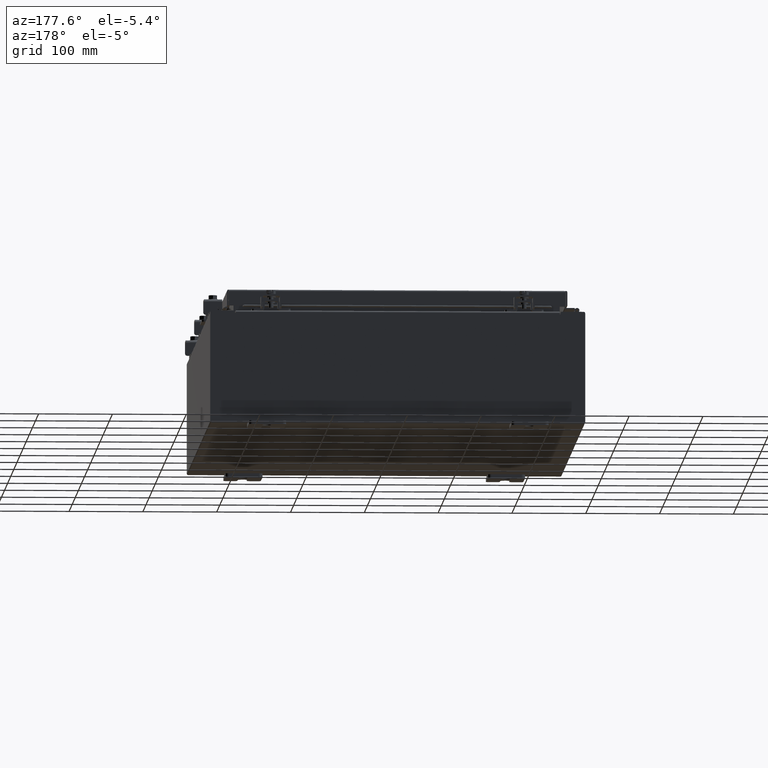
[diagram: clean part render]
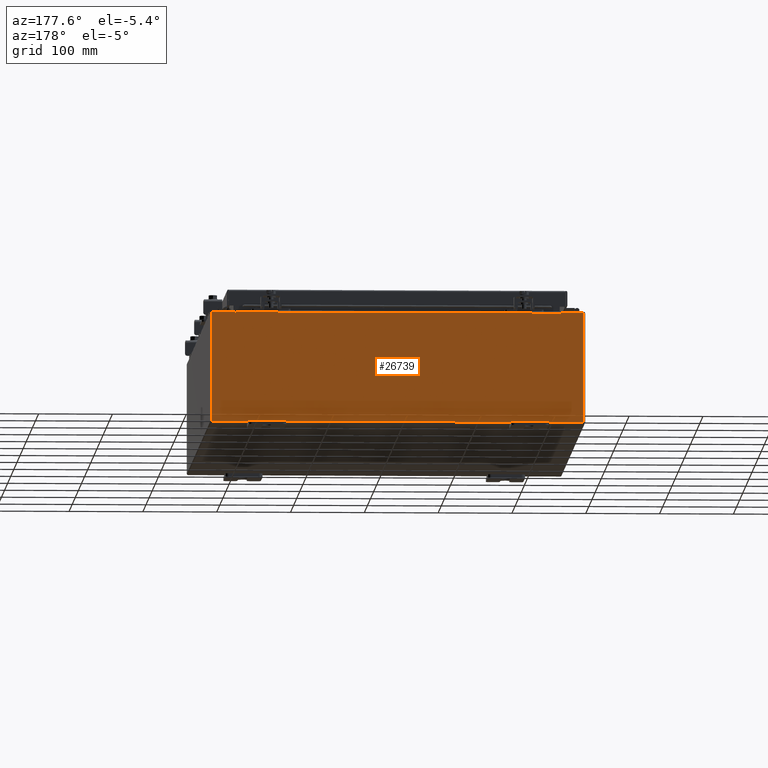
[diagram: same view with one face highlighted and labeled with its STEP entity id]
A machine part, auxiliary view. The second image highlights one B-rep face of the part: STEP entity #26739.
In plain terms, the highlighted planar face has unit normal (0, -1, 0).
Its self-contained STEP definition (entity closure, byte-faithful):
#12 = CARTESIAN_POINT ( 'NONE',  ( 8.637200000000000000, 0.0000000000000000000, 2.912300000000000600 ) ) ;
#49 = FACE_OUTER_BOUND ( 'NONE', #36806, .T. ) ;
#1368 = EDGE_CURVE ( 'NONE', #26752, #14244, #2897, .T. ) ;
#1955 = DIRECTION ( 'NONE',  ( 0.0000000000000000000, -1.000000000000000000, 0.0000000000000000000 ) ) ;
#2897 = LINE ( 'NONE', #9108, #4090 ) ;
#3399 = ORIENTED_EDGE ( 'NONE', *, *, #8459, .F. ) ;
#3503 = CARTESIAN_POINT ( 'NONE',  ( -9.925300000000000000, 0.0000000000000000000, 2.925300000000000500 ) ) ;
#4016 = CARTESIAN_POINT ( 'NONE',  ( -8.655874999999996400, 0.0000000000000000000, 2.874950000000000600 ) ) ;
#4090 = VECTOR ( 'NONE', #14030, 39.37007874015748100 ) ;
#4351 = ORIENTED_EDGE ( 'NONE', *, *, #19134, .T. ) ;
#4746 = LINE ( 'NONE', #20429, #34940 ) ;
#4837 = LINE ( 'NONE', #10021, #12767 ) ;
#4976 = DIRECTION ( 'NONE',  ( 0.0000000000000000000, 0.0000000000000000000, 1.000000000000000000 ) ) ;
#5275 = LINE ( 'NONE', #9349, #9043 ) ;
#5551 = ORIENTED_EDGE ( 'NONE', *, *, #26590, .T. ) ;
#5842 = ORIENTED_EDGE ( 'NONE', *, *, #30534, .T. ) ;
#5985 = DIRECTION ( 'NONE',  ( 0.0000000000000000000, 0.0000000000000000000, -1.000000000000000000 ) ) ;
#6352 = EDGE_CURVE ( 'NONE', #6433, #9522, #5275, .T. ) ;
#6376 = ORIENTED_EDGE ( 'NONE', *, *, #1368, .T. ) ;
#6433 = VERTEX_POINT ( 'NONE', #19296 ) ;
#7497 = DIRECTION ( 'NONE',  ( 0.0000000000000000000, 0.0000000000000000000, -1.000000000000000000 ) ) ;
#7583 = CARTESIAN_POINT ( 'NONE',  ( 8.674549999999813500, -0.0000000000000000000, -5.647877341832707700E-013 ) ) ;
#7759 = VERTEX_POINT ( 'NONE', #14142 ) ;
#7940 = DIRECTION ( 'NONE',  ( -0.0000000000000000000, -0.0000000000000000000, 1.000000000000000000 ) ) ;
#8405 = EDGE_CURVE ( 'NONE', #29214, #31838, #17151, .T. ) ;
#8421 = DIRECTION ( 'NONE',  ( -0.0000000000000000000, 1.000000000000000000, -0.0000000000000000000 ) ) ;
#8459 = EDGE_CURVE ( 'NONE', #7759, #24770, #4837, .T. ) ;
#9043 = VECTOR ( 'NONE', #4976, 39.37007874015748100 ) ;
#9108 = CARTESIAN_POINT ( 'NONE',  ( -9.925300000000000000, 0.0000000000000000000, -2.925299999999999600 ) ) ;
#9349 = CARTESIAN_POINT ( 'NONE',  ( -8.674549999999996400, -0.0000000000000000000, 0.0000000000000000000 ) ) ;
#9522 = VERTEX_POINT ( 'NONE', #37547 ) ;
#9666 = LINE ( 'NONE', #35572, #24303 ) ;
#9969 = EDGE_CURVE ( 'NONE', #36247, #6433, #32812, .T. ) ;
#10021 = CARTESIAN_POINT ( 'NONE',  ( 8.637200000000000000, 0.0000000000000000000, 0.0000000000000000000 ) ) ;
#11119 = CARTESIAN_POINT ( 'NONE',  ( -9.925300000000000000, 0.0000000000000000000, -2.925299999999999600 ) ) ;
#11196 = DIRECTION ( 'NONE',  ( -6.510859170600007400E-014, 0.0000000000000000000, -1.000000000000000000 ) ) ;
#11623 = ORIENTED_EDGE ( 'NONE', *, *, #13624, .T. ) ;
#12153 = ORIENTED_EDGE ( 'NONE', *, *, #19301, .F. ) ;
#12425 = LINE ( 'NONE', #36216, #29803 ) ;
#12767 = VECTOR ( 'NONE', #36761, 39.37007874015748100 ) ;
#13624 = EDGE_CURVE ( 'NONE', #32075, #26752, #34482, .T. ) ;
#13717 = CARTESIAN_POINT ( 'NONE',  ( -8.637199999999996400, -0.0000000000000000000, 0.0000000000000000000 ) ) ;
#13735 = CARTESIAN_POINT ( 'NONE',  ( 8.655875000000000000, 0.0000000000000000000, 2.874950000000000600 ) ) ;
#13756 = CARTESIAN_POINT ( 'NONE',  ( 9.925300000000000000, 0.0000000000000000000, -2.925299999999999600 ) ) ;
#14030 = DIRECTION ( 'NONE',  ( -1.000000000000000000, -0.0000000000000000000, -0.0000000000000000000 ) ) ;
#14142 = CARTESIAN_POINT ( 'NONE',  ( 8.637200000000000000, 0.0000000000000000000, 2.874950000000000600 ) ) ;
#14244 = VERTEX_POINT ( 'NONE', #11119 ) ;
#15331 = CARTESIAN_POINT ( 'NONE',  ( 8.674550000000001800, 0.0000000000000000000, 2.925300000000000500 ) ) ;
#15439 = CARTESIAN_POINT ( 'NONE',  ( 8.674550000000000000, 0.0000000000000000000, 2.874950000000000600 ) ) ;
#15909 = DIRECTION ( 'NONE',  ( 1.000000000000000000, 0.0000000000000000000, 0.0000000000000000000 ) ) ;
#17151 = LINE ( 'NONE', #7583, #24943 ) ;
#17362 = VERTEX_POINT ( 'NONE', #19607 ) ;
#17412 = LINE ( 'NONE', #3503, #29862 ) ;
#18627 = DIRECTION ( 'NONE',  ( 0.0000000000000000000, 0.0000000000000000000, -1.000000000000000000 ) ) ;
#18649 = DIRECTION ( 'NONE',  ( -0.0000000000000000000, 1.000000000000000000, -0.0000000000000000000 ) ) ;
#19040 = EDGE_CURVE ( 'NONE', #17362, #9522, #9666, .T. ) ;
#19134 = EDGE_CURVE ( 'NONE', #23503, #24770, #12425, .T. ) ;
#19296 = CARTESIAN_POINT ( 'NONE',  ( -8.674549999999996400, 0.0000000000000000000, 2.874950000000000600 ) ) ;
#19301 = EDGE_CURVE ( 'NONE', #31838, #7759, #29844, .T. ) ;
#19607 = CARTESIAN_POINT ( 'NONE',  ( -9.925300000000000000, 0.0000000000000000000, 2.925300000000000500 ) ) ;
#19660 = DIRECTION ( 'NONE',  ( 0.0000000000000000000, 0.0000000000000000000, -1.000000000000000000 ) ) ;
#20429 = CARTESIAN_POINT ( 'NONE',  ( -9.925300000000000000, 0.0000000000000000000, 2.925300000000000500 ) ) ;
#22392 = PLANE ( 'NONE',  #24211 ) ;
#22491 = ORIENTED_EDGE ( 'NONE', *, *, #9969, .F. ) ;
#22833 = CARTESIAN_POINT ( 'NONE',  ( 9.925300000000000000, 0.0000000000000000000, 2.925300000000000500 ) ) ;
#23503 = VERTEX_POINT ( 'NONE', #28937 ) ;
#24211 = AXIS2_PLACEMENT_3D ( 'NONE', #33009, #1955, #34040 ) ;
#24303 = VECTOR ( 'NONE', #31867, 39.37007874015748100 ) ;
#24770 = VERTEX_POINT ( 'NONE', #12 ) ;
#24943 = VECTOR ( 'NONE', #11196, 39.37007874015748100 ) ;
#24967 = ORIENTED_EDGE ( 'NONE', *, *, #25814, .F. ) ;
#25681 = ORIENTED_EDGE ( 'NONE', *, *, #6352, .F. ) ;
#25814 = EDGE_CURVE ( 'NONE', #23503, #36247, #31957, .T. ) ;
#26590 = EDGE_CURVE ( 'NONE', #14244, #17362, #17412, .T. ) ;
#26739 = ADVANCED_FACE ( 'NONE', ( #49 ), #22392, .F. ) ;
#26752 = VERTEX_POINT ( 'NONE', #13756 ) ;
#27483 = VECTOR ( 'NONE', #18627, 39.37007874015748100 ) ;
#27925 = ORIENTED_EDGE ( 'NONE', *, *, #19040, .T. ) ;
#28937 = CARTESIAN_POINT ( 'NONE',  ( -8.637199999999996400, 1.024442997624098700E-016, 2.912300000000000600 ) ) ;
#29214 = VERTEX_POINT ( 'NONE', #15331 ) ;
#29803 = VECTOR ( 'NONE', #15909, 39.37007874015748100 ) ;
#29844 = CIRCLE ( 'NONE', #37807, 0.01867500000000003900 ) ;
#29862 = VECTOR ( 'NONE', #7940, 39.37007874015748100 ) ;
#30534 = EDGE_CURVE ( 'NONE', #29214, #32075, #4746, .T. ) ;
#31402 = DIRECTION ( 'NONE',  ( 1.000000000000000000, 0.0000000000000000000, 0.0000000000000000000 ) ) ;
#31838 = VERTEX_POINT ( 'NONE', #15439 ) ;
#31867 = DIRECTION ( 'NONE',  ( 1.000000000000000000, 0.0000000000000000000, 0.0000000000000000000 ) ) ;
#31957 = LINE ( 'NONE', #13717, #27483 ) ;
#32075 = VERTEX_POINT ( 'NONE', #32390 ) ;
#32220 = CARTESIAN_POINT ( 'NONE',  ( -8.637199999999996400, -0.0000000000000000000, 2.874950000000000600 ) ) ;
#32390 = CARTESIAN_POINT ( 'NONE',  ( 9.925300000000000000, 0.0000000000000000000, 2.925300000000000500 ) ) ;
#32812 = CIRCLE ( 'NONE', #33751, 0.01867500000000003900 ) ;
#33009 = CARTESIAN_POINT ( 'NONE',  ( 0.0000000000000000000, 0.0000000000000000000, 0.0000000000000000000 ) ) ;
#33751 = AXIS2_PLACEMENT_3D ( 'NONE', #4016, #18649, #7497 ) ;
#34040 = DIRECTION ( 'NONE',  ( 0.0000000000000000000, -0.0000000000000000000, -1.000000000000000000 ) ) ;
#34482 = LINE ( 'NONE', #22833, #37693 ) ;
#34940 = VECTOR ( 'NONE', #31402, 39.37007874015748100 ) ;
#35572 = CARTESIAN_POINT ( 'NONE',  ( -9.925300000000000000, 0.0000000000000000000, 2.925300000000000500 ) ) ;
#36216 = CARTESIAN_POINT ( 'NONE',  ( -8.637200000000000000, 1.024442997624098700E-016, 2.912300000000000600 ) ) ;
#36247 = VERTEX_POINT ( 'NONE', #32220 ) ;
#36761 = DIRECTION ( 'NONE',  ( 0.0000000000000000000, 0.0000000000000000000, 1.000000000000000000 ) ) ;
#36806 = EDGE_LOOP ( 'NONE', ( #25681, #22491, #24967, #4351, #3399, #12153, #37164, #5842, #11623, #6376, #5551, #27925 ) ) ;
#37164 = ORIENTED_EDGE ( 'NONE', *, *, #8405, .F. ) ;
#37547 = CARTESIAN_POINT ( 'NONE',  ( -8.674549999999996400, 0.0000000000000000000, 2.925300000000000500 ) ) ;
#37693 = VECTOR ( 'NONE', #5985, 39.37007874015748100 ) ;
#37807 = AXIS2_PLACEMENT_3D ( 'NONE', #13735, #8421, #19660 ) ;